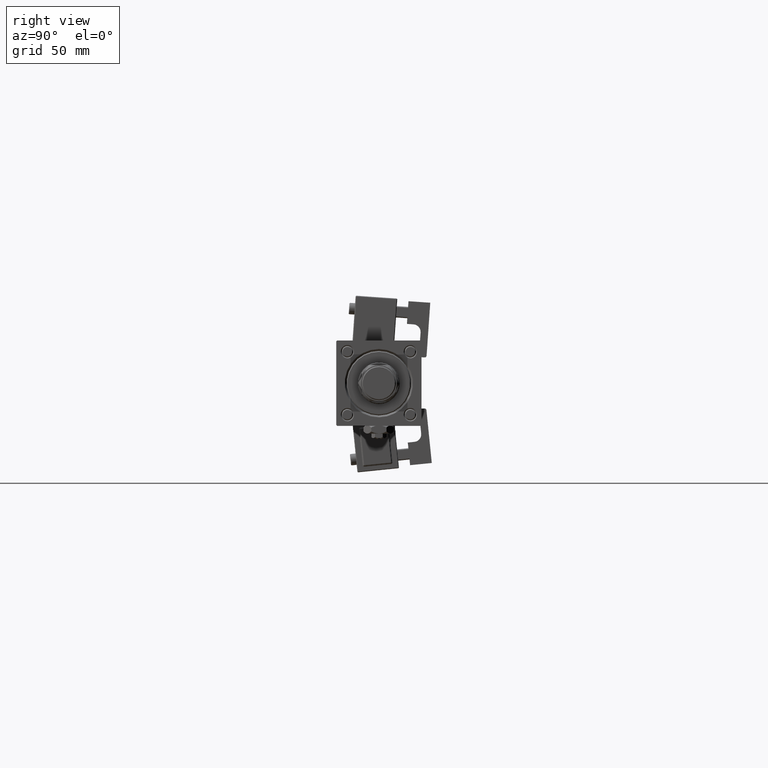
[diagram: clean part render]
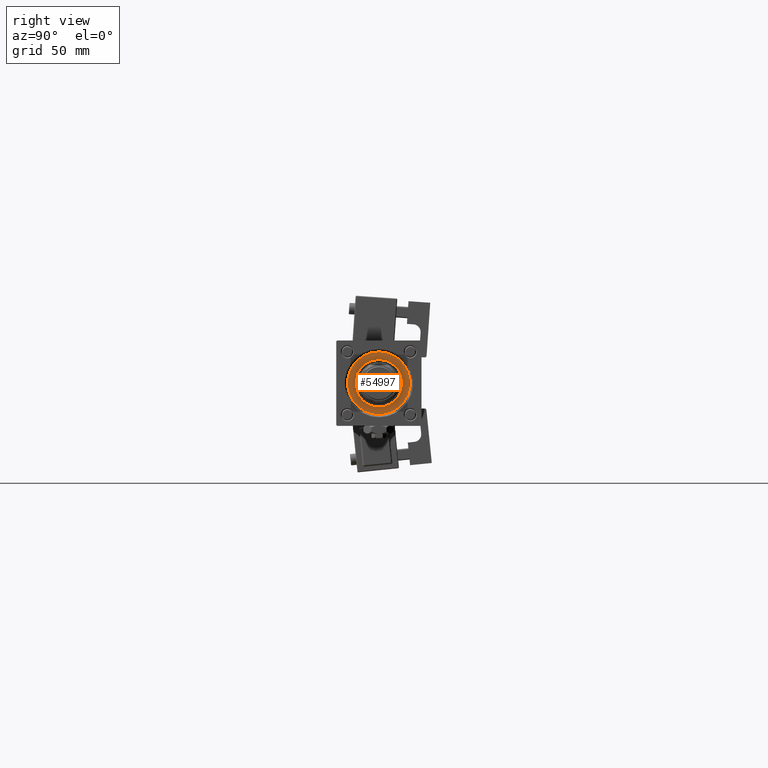
[diagram: same view with one face highlighted and labeled with its STEP entity id]
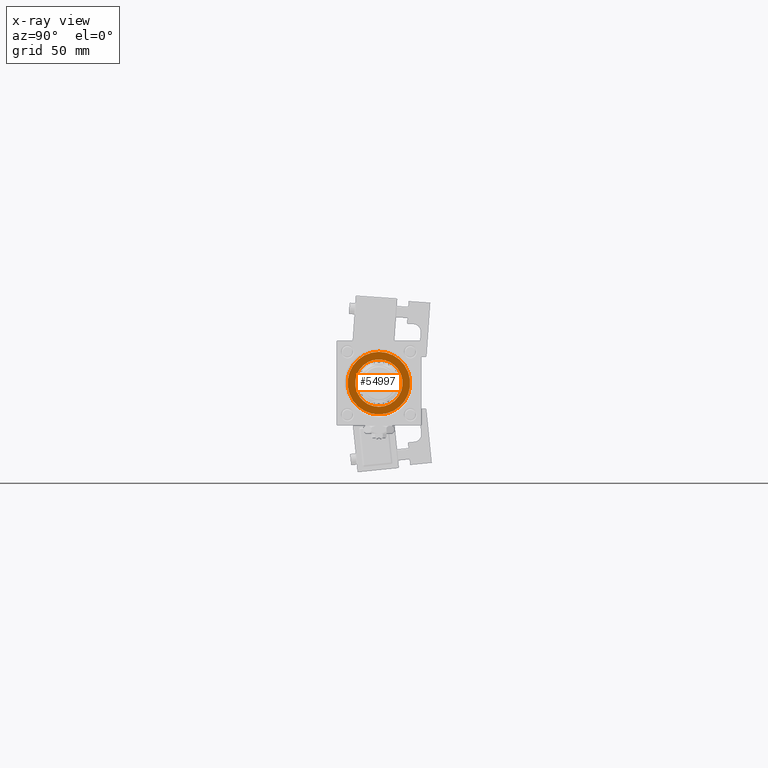
[diagram: x-ray of the same camera — body ghosted, the highlighted face saturated]
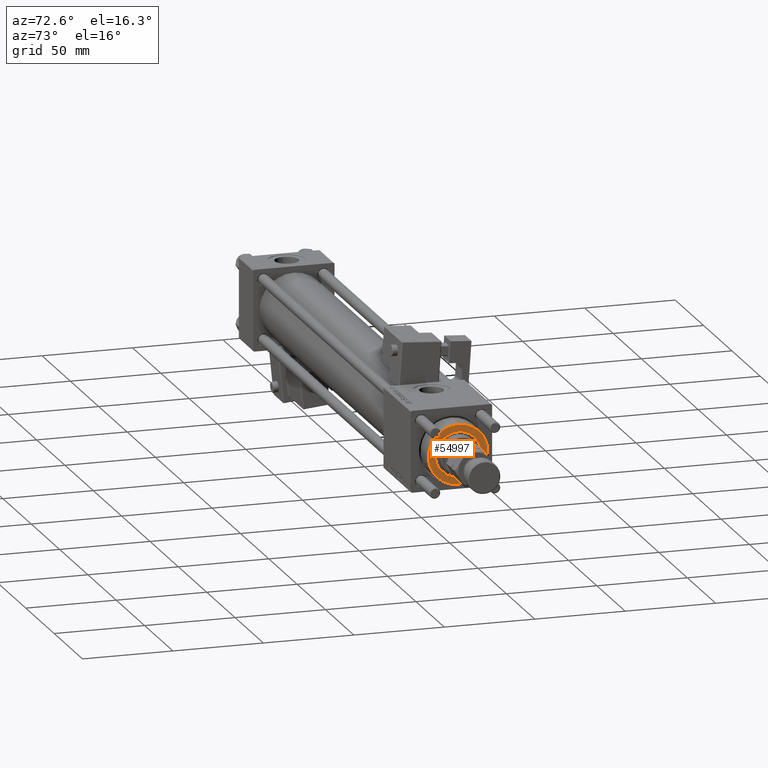
[diagram: same view with one face highlighted and labeled with its STEP entity id]
A machine part, right view. The second image highlights one B-rep face of the part: STEP entity #54997.
The next image is the same camera in x-ray: the body ghosted, the highlighted face saturated — about 0% of this face is hidden behind the body in this view.
A second angle (auxiliary view) of the same face is appended — the face is thin or edge-on in the first view.
In plain terms, the highlighted planar face has unit normal (1, 0, 0).
Its self-contained STEP definition (entity closure, byte-faithful):
#1751 = DIRECTION ( 'NONE',  ( 1.000000000000000000, 0.000000000000000000, 0.000000000000000000 ) ) ;
#2493 = AXIS2_PLACEMENT_3D ( 'NONE', #61545, #53277, #37725 ) ;
#2506 = EDGE_CURVE ( 'NONE', #52772, #24560, #48462, .T. ) ;
#3359 = DIRECTION ( 'NONE',  ( 1.000000000000000000, 0.000000000000000000, 0.000000000000000000 ) ) ;
#4383 = CIRCLE ( 'NONE', #38860, 16.49999999999999289 ) ;
#5247 = DIRECTION ( 'NONE',  ( 1.000000000000000000, 0.000000000000000000, 0.000000000000000000 ) ) ;
#7517 = CIRCLE ( 'NONE', #61247, 16.49999999999999289 ) ;
#9478 = FACE_OUTER_BOUND ( 'NONE', #56490, .T. ) ;
#10306 = CARTESIAN_POINT ( 'NONE',  ( -16.49999999999999289, 0.000000000000000000, 40.70000000000000284 ) ) ;
#11065 = CARTESIAN_POINT ( 'NONE',  ( -12.50000000000000000, 1.530808498934191521E-15, 40.70000000000000284 ) ) ;
#12873 = CARTESIAN_POINT ( 'NONE',  ( 0.000000000000000000, 0.000000000000000000, 40.70000000000000284 ) ) ;
#14765 = DIRECTION ( 'NONE',  ( 0.000000000000000000, 0.000000000000000000, 1.000000000000000000 ) ) ;
#17148 = CARTESIAN_POINT ( 'NONE',  ( 16.49999999999999289, 2.051283388571816493E-15, 40.70000000000000284 ) ) ;
#23322 = DIRECTION ( 'NONE',  ( 0.000000000000000000, 0.000000000000000000, 1.000000000000000000 ) ) ;
#24560 = VERTEX_POINT ( 'NONE', #24626 ) ;
#24626 = CARTESIAN_POINT ( 'NONE',  ( 12.50000000000000000, 0.000000000000000000, 40.70000000000000284 ) ) ;
#27265 = FACE_BOUND ( 'NONE', #47396, .T. ) ;
#28655 = AXIS2_PLACEMENT_3D ( 'NONE', #50613, #40152, #1751 ) ;
#28831 = PLANE ( 'NONE',  #2493 ) ;
#29092 = ORIENTED_EDGE ( 'NONE', *, *, #2506, .F. ) ;
#29569 = VERTEX_POINT ( 'NONE', #10306 ) ;
#37725 = DIRECTION ( 'NONE',  ( 1.000000000000000000, 0.000000000000000000, -0.000000000000000000 ) ) ;
#38860 = AXIS2_PLACEMENT_3D ( 'NONE', #12873, #23322, #3359 ) ;
#40152 = DIRECTION ( 'NONE',  ( 0.000000000000000000, 0.000000000000000000, 1.000000000000000000 ) ) ;
#40471 = DIRECTION ( 'NONE',  ( 0.000000000000000000, 0.000000000000000000, 1.000000000000000000 ) ) ;
#41445 = VERTEX_POINT ( 'NONE', #17148 ) ;
#42854 = CIRCLE ( 'NONE', #28655, 12.50000000000000000 ) ;
#44421 = ORIENTED_EDGE ( 'NONE', *, *, #48421, .T. ) ;
#47396 = EDGE_LOOP ( 'NONE', ( #52165, #29092 ) ) ;
#48421 = EDGE_CURVE ( 'NONE', #29569, #41445, #4383, .T. ) ;
#48462 = CIRCLE ( 'NONE', #56562, 12.50000000000000000 ) ;
#50613 = CARTESIAN_POINT ( 'NONE',  ( 0.000000000000000000, 0.000000000000000000, 40.70000000000000284 ) ) ;
#50933 = EDGE_CURVE ( 'NONE', #24560, #52772, #42854, .T. ) ;
#51549 = ORIENTED_EDGE ( 'NONE', *, *, #54448, .T. ) ;
#52165 = ORIENTED_EDGE ( 'NONE', *, *, #50933, .F. ) ;
#52772 = VERTEX_POINT ( 'NONE', #11065 ) ;
#53277 = DIRECTION ( 'NONE',  ( 0.000000000000000000, 0.000000000000000000, 1.000000000000000000 ) ) ;
#54447 = CARTESIAN_POINT ( 'NONE',  ( 0.000000000000000000, 0.000000000000000000, 40.70000000000000284 ) ) ;
#54448 = EDGE_CURVE ( 'NONE', #41445, #29569, #7517, .T. ) ;
#54997 = ADVANCED_FACE ( 'NONE', ( #27265, #9478 ), #28831, .T. ) ;
#56490 = EDGE_LOOP ( 'NONE', ( #44421, #51549 ) ) ;
#56562 = AXIS2_PLACEMENT_3D ( 'NONE', #54447, #40471, #5247 ) ;
#58254 = DIRECTION ( 'NONE',  ( 1.000000000000000000, 0.000000000000000000, 0.000000000000000000 ) ) ;
#61247 = AXIS2_PLACEMENT_3D ( 'NONE', #62076, #14765, #58254 ) ;
#61545 = CARTESIAN_POINT ( 'NONE',  ( 0.000000000000000000, 0.000000000000000000, 40.70000000000000284 ) ) ;
#62076 = CARTESIAN_POINT ( 'NONE',  ( 0.000000000000000000, 0.000000000000000000, 40.70000000000000284 ) ) ;